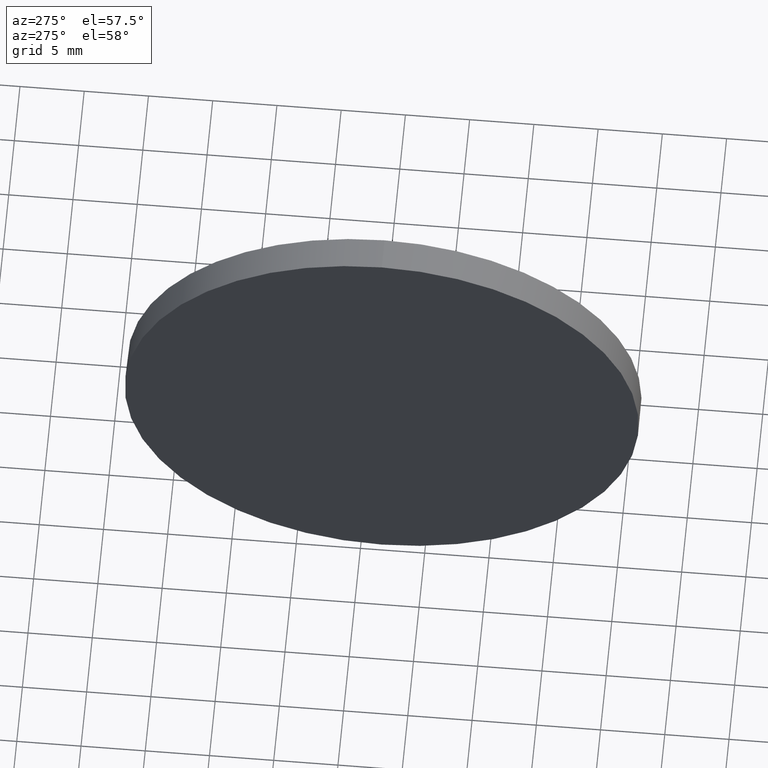
[diagram: clean part render]
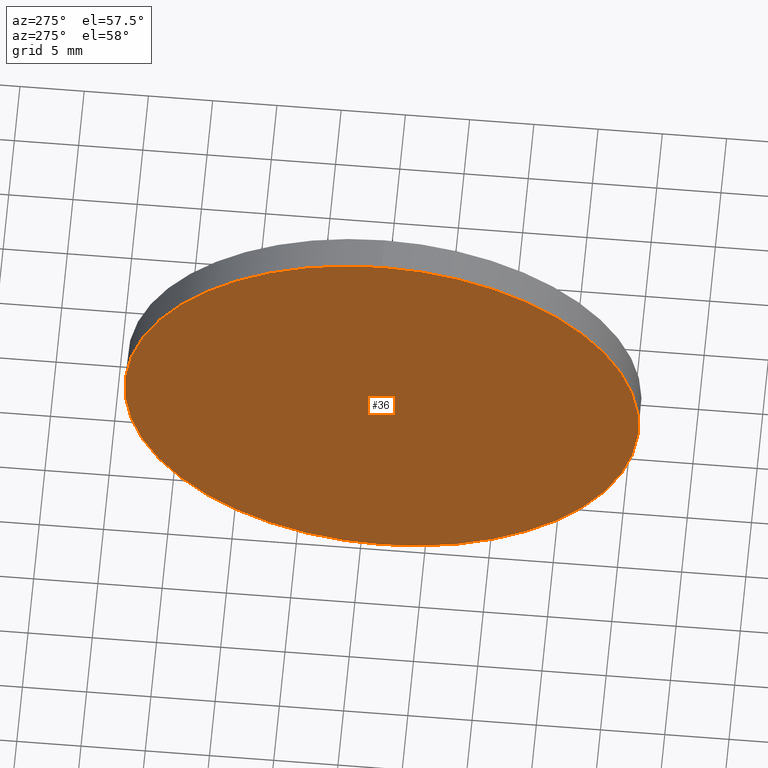
[diagram: same view with one face highlighted and labeled with its STEP entity id]
A machine part, auxiliary view. The second image highlights one B-rep face of the part: STEP entity #36.
In plain terms, the highlighted planar face has unit normal (1, 0, 0).
Its self-contained STEP definition (entity closure, byte-faithful):
#1 = CARTESIAN_POINT ( 'NONE',  ( 449.9479601243584200, 48.34004020051941100, 19.99999999999999600 ) ) ;
#4 = DIRECTION ( 'NONE',  ( -1.000000000000000000, -0.0000000000000000000, -0.0000000000000000000 ) ) ;
#10 = EDGE_CURVE ( 'NONE', #29, #74, #50, .T. ) ;
#11 = FACE_OUTER_BOUND ( 'NONE', #182, .T. ) ;
#15 = AXIS2_PLACEMENT_3D ( 'NONE', #71, #4, #112 ) ;
#29 = VERTEX_POINT ( 'NONE', #153 ) ;
#36 = ADVANCED_FACE ( 'NONE', ( #11 ), #168, .F. ) ;
#39 = DIRECTION ( 'NONE',  ( -1.000000000000000000, -0.0000000000000000000, -0.0000000000000000000 ) ) ;
#44 = AXIS2_PLACEMENT_3D ( 'NONE', #102, #39, #120 ) ;
#50 = CIRCLE ( 'NONE', #15, 19.99999999999999600 ) ;
#56 = ORIENTED_EDGE ( 'NONE', *, *, #10, .T. ) ;
#71 = CARTESIAN_POINT ( 'NONE',  ( 449.9479601243584200, 48.34004020051941100, 0.0000000000000000000 ) ) ;
#74 = VERTEX_POINT ( 'NONE', #1 ) ;
#93 = DIRECTION ( 'NONE',  ( 1.000000000000000000, 0.0000000000000000000, 0.0000000000000000000 ) ) ;
#102 = CARTESIAN_POINT ( 'NONE',  ( 449.9479601243584200, 48.34004020051941100, 0.0000000000000000000 ) ) ;
#112 = DIRECTION ( 'NONE',  ( 0.0000000000000000000, 0.0000000000000000000, 1.000000000000000000 ) ) ;
#116 = ORIENTED_EDGE ( 'NONE', *, *, #148, .T. ) ;
#120 = DIRECTION ( 'NONE',  ( 0.0000000000000000000, 0.0000000000000000000, 1.000000000000000000 ) ) ;
#136 = AXIS2_PLACEMENT_3D ( 'NONE', #157, #93, #171 ) ;
#148 = EDGE_CURVE ( 'NONE', #74, #29, #163, .T. ) ;
#153 = CARTESIAN_POINT ( 'NONE',  ( 449.9479601243584200, 48.34004020051941100, -19.99999999999999600 ) ) ;
#157 = CARTESIAN_POINT ( 'NONE',  ( 449.9479601243584200, 48.34004020051941100, 0.0000000000000000000 ) ) ;
#163 = CIRCLE ( 'NONE', #44, 19.99999999999999600 ) ;
#168 = PLANE ( 'NONE',  #136 ) ;
#171 = DIRECTION ( 'NONE',  ( 0.0000000000000000000, 0.0000000000000000000, -1.000000000000000000 ) ) ;
#182 = EDGE_LOOP ( 'NONE', ( #116, #56 ) ) ;